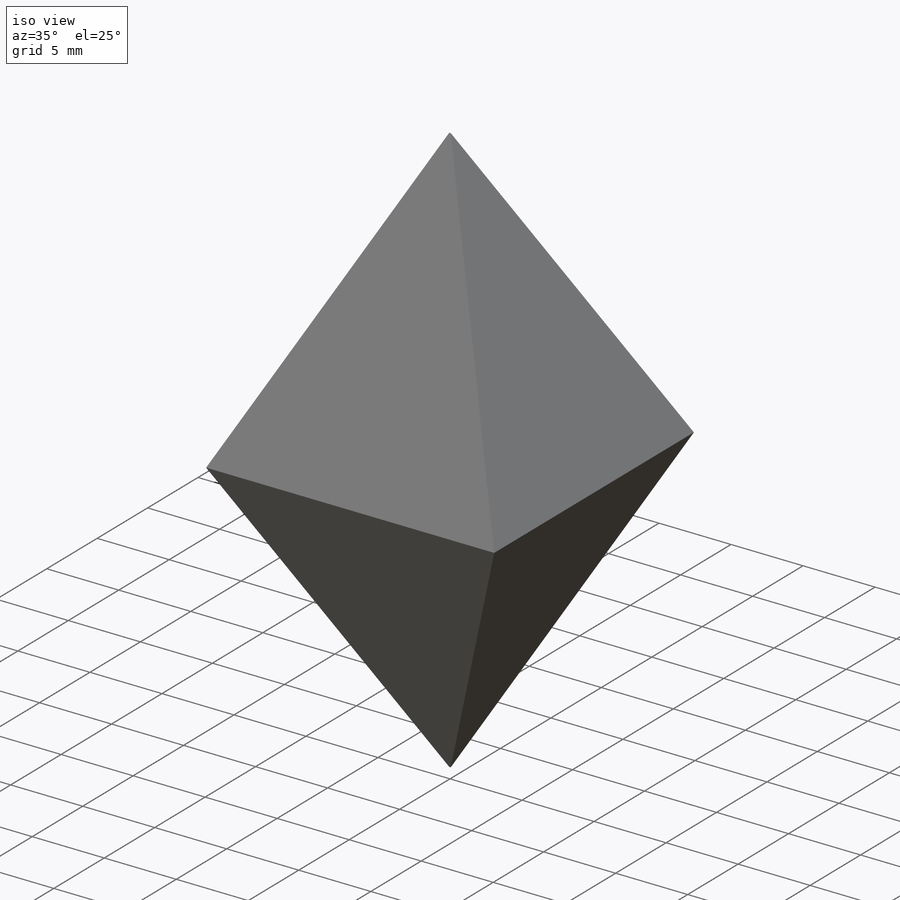
[diagram: iso view]
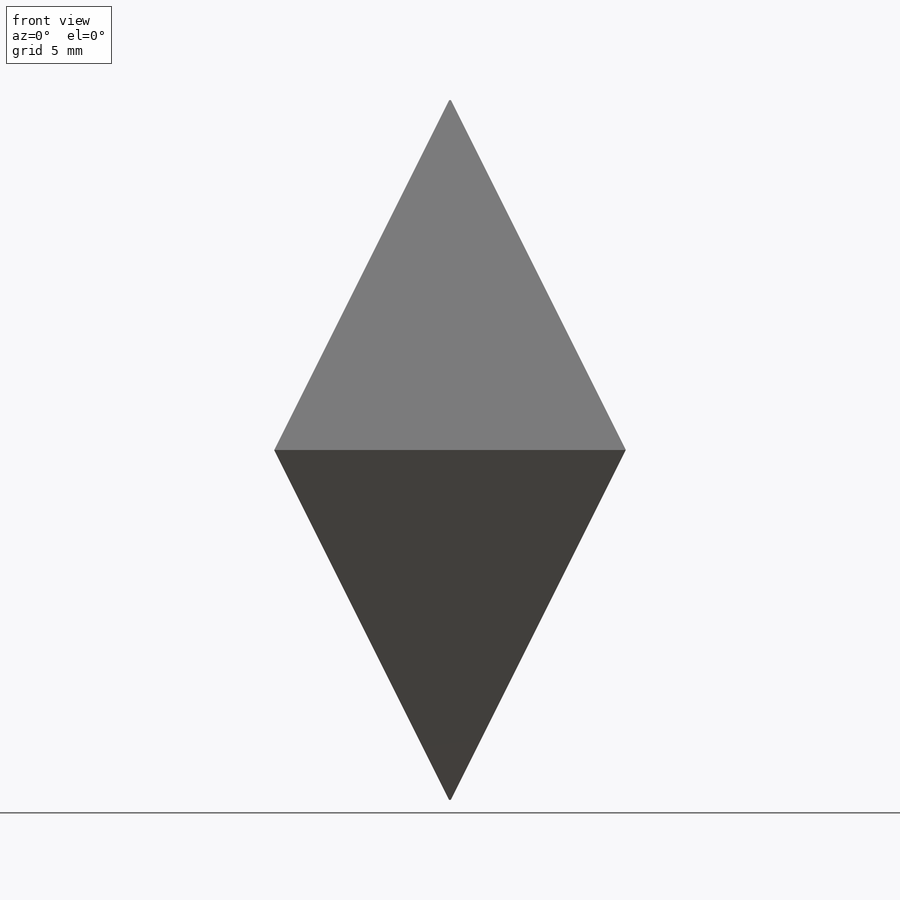
[diagram: front view]
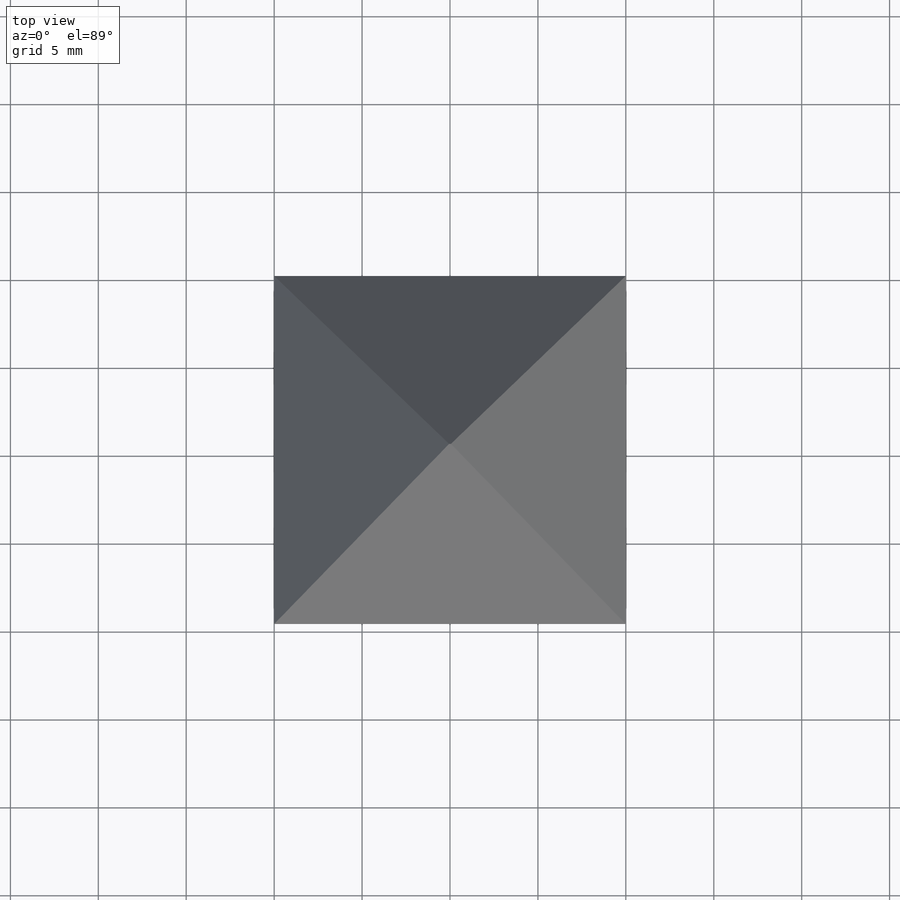
[diagram: top view]
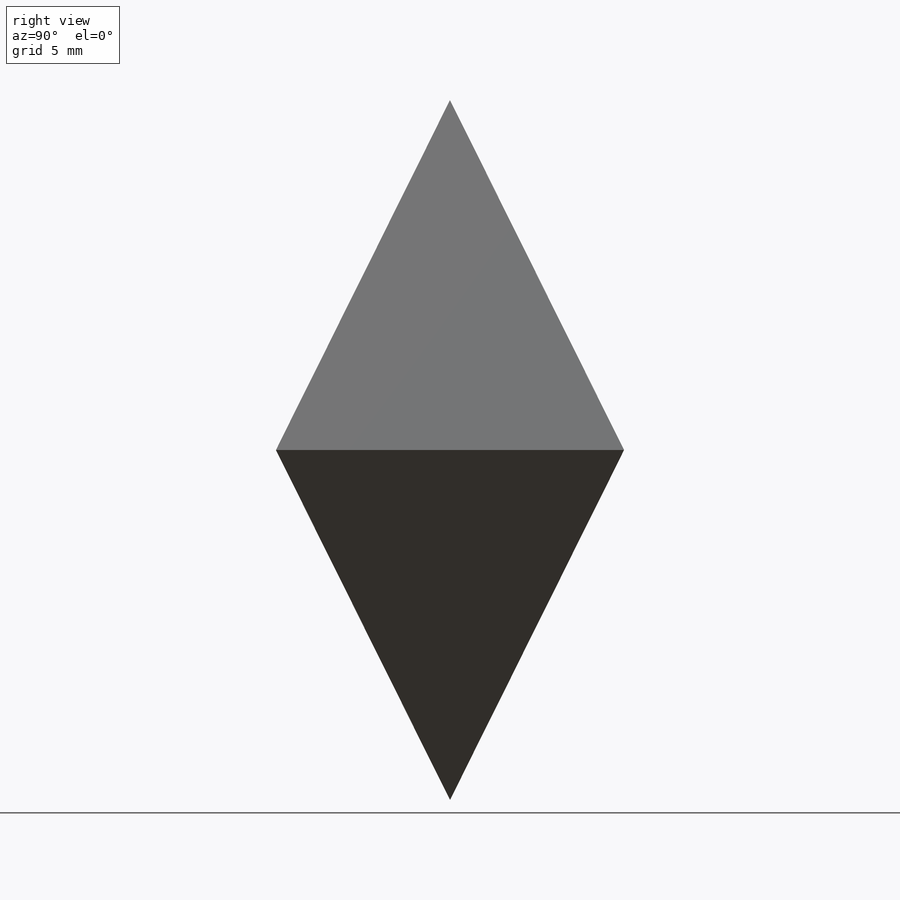
[diagram: right view]
SOLIDWORKS PART (.sldprt)
format: sldprt  version: not decoded by parser v0  size: 155,648 bytes
history: native  units: mm
features: plane x4, sketch x4, cut_extrude x2, material x1, extrude x1 (+9 scaffold rows collapsed)
feature tree (21):
  scaffold x9  (default folders/planes/origin — collapsed)
  material  "Materiał <nieokreślony>"
  plane  "Płaszczyzna przednia"
  plane  "Płaszczyzna górna"
  plane  "Płaszczyzna prawa"
  sketch  "Szkic2"  dims[D1=20.0mm D2=20.0mm D3=10.0mm D4=10.0mm]
  extrude  "Dodanie-wyciągnięcie1"  Depth=20mm
  sketch  "Szkic6"  dims[D1=0.1mm D2=9.9mm D3=19.9mm D4=19.9mm]
  cut_extrude  "Wytnij-wyciągnięcie2"  Depth=10mm
  plane  "Płaszczyzna1"
  sketch  "Szkic7"
  cut_extrude  "Wytnij-wyciągnięcie3"  Depth=40mm
  sketch  "Szkic8"
decode coverage: 5 of 7 modeling features carry decoded parameters
note: suppression state not decoded; provenance and decode notes live in map.json
